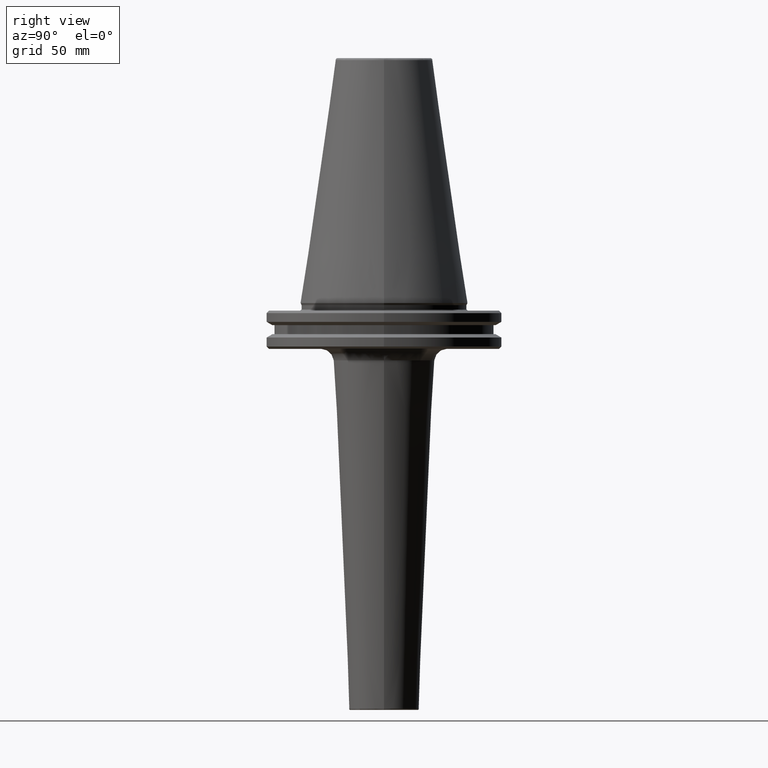
[diagram: clean part render]
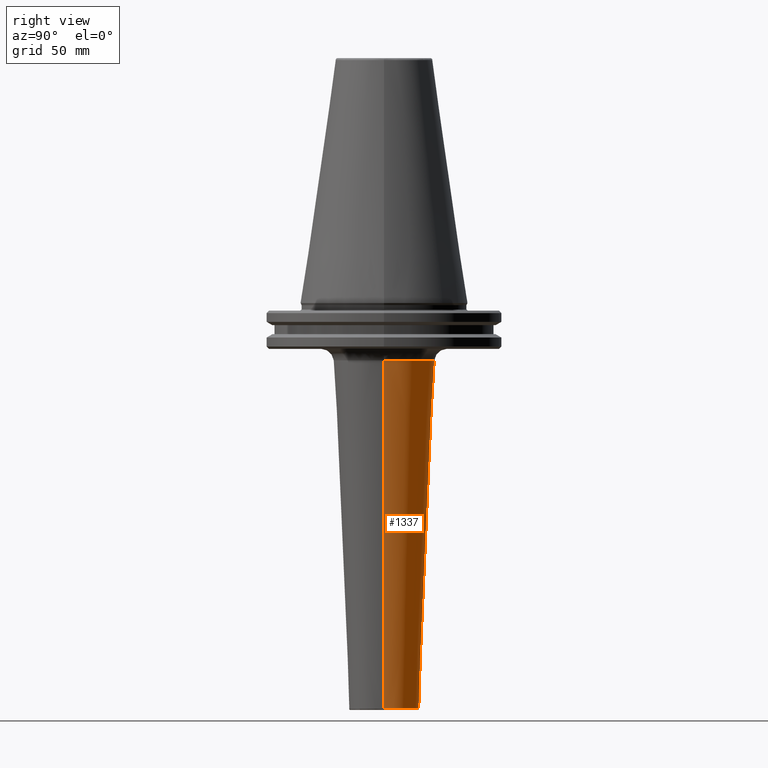
[diagram: same view with one face highlighted and labeled with its STEP entity id]
A machine part, right view. The second image highlights one B-rep face of the part: STEP entity #1337.
In plain terms, the highlighted conical surface has half-angle 2.577 deg.
Its self-contained STEP definition (entity closure, byte-faithful):
#39 = CARTESIAN_POINT ( 'NONE',  ( 14.52148852360191900, 0.0000000000000000000, -168.6224772532907300 ) ) ;
#44 = EDGE_CURVE ( 'NONE', #608, #973, #1313, .T. ) ;
#45 = CARTESIAN_POINT ( 'NONE',  ( 0.0000000000000000000, 0.0000000000000000000, -23.87522746709260000 ) ) ;
#53 = DIRECTION ( 'NONE',  ( 0.0000000000000000000, 0.0000000000000000000, 1.000000000000000000 ) ) ;
#87 = DIRECTION ( 'NONE',  ( 1.000000000000000000, 0.0000000000000000000, 0.0000000000000000000 ) ) ;
#116 = CARTESIAN_POINT ( 'NONE',  ( 21.03511476398083200, 0.0000000000000000000, -23.87522746709260000 ) ) ;
#121 = DIRECTION ( 'NONE',  ( 0.04495450658148167400, 0.0000000000000000000, 0.9989890351440378100 ) ) ;
#126 = CARTESIAN_POINT ( 'NONE',  ( 21.03511476398083200, 0.0000000000000000000, -23.87522746709260000 ) ) ;
#175 = DIRECTION ( 'NONE',  ( -1.000000000000000000, 0.0000000000000000000, 0.0000000000000000000 ) ) ;
#190 = DIRECTION ( 'NONE',  ( 0.0000000000000000000, 0.0000000000000000000, -1.000000000000000000 ) ) ;
#206 = CARTESIAN_POINT ( 'NONE',  ( 0.0000000000000000000, 0.0000000000000000000, -23.87522746709260000 ) ) ;
#210 = DIRECTION ( 'NONE',  ( -0.04495450658148167400, 5.505339259226015600E-018, 0.9989890351440378100 ) ) ;
#234 = DIRECTION ( 'NONE',  ( 1.000000000000000000, 0.0000000000000000000, 0.0000000000000000000 ) ) ;
#240 = DIRECTION ( 'NONE',  ( 0.0000000000000000000, 0.0000000000000000000, 1.000000000000000000 ) ) ;
#245 = CARTESIAN_POINT ( 'NONE',  ( 0.0000000000000000000, 0.0000000000000000000, -168.6224772532907300 ) ) ;
#256 = CARTESIAN_POINT ( 'NONE',  ( -21.03511476398083200, 2.576058596540636000E-015, -23.87522746709260000 ) ) ;
#332 = AXIS2_PLACEMENT_3D ( 'NONE', #206, #190, #175 ) ;
#340 = AXIS2_PLACEMENT_3D ( 'NONE', #245, #240, #234 ) ;
#486 = AXIS2_PLACEMENT_3D ( 'NONE', #45, #53, #87 ) ;
#608 = VERTEX_POINT ( 'NONE', #710 ) ;
#710 = CARTESIAN_POINT ( 'NONE',  ( -14.52148852360192100, 2.177214020234523800E-015, -168.6224772532907300 ) ) ;
#712 = CONICAL_SURFACE ( 'NONE', #486, 21.03511476398083200, 0.04496966185232755700 ) ;
#779 = FACE_OUTER_BOUND ( 'NONE', #1019, .T. ) ;
#803 = VECTOR ( 'NONE', #121, 1000.000000000000000 ) ;
#810 = ORIENTED_EDGE ( 'NONE', *, *, #919, .T. ) ;
#841 = LINE ( 'NONE', #126, #803 ) ;
#910 = EDGE_CURVE ( 'NONE', #1338, #608, #1080, .T. ) ;
#919 = EDGE_CURVE ( 'NONE', #973, #1207, #1065, .T. ) ;
#973 = VERTEX_POINT ( 'NONE', #256 ) ;
#1019 = EDGE_LOOP ( 'NONE', ( #1377, #1453, #810, #1222 ) ) ;
#1065 = CIRCLE ( 'NONE', #332, 21.03511476398083200 ) ;
#1080 = CIRCLE ( 'NONE', #340, 14.52148852360191900 ) ;
#1118 = VECTOR ( 'NONE', #210, 1000.000000000000000 ) ;
#1176 = EDGE_CURVE ( 'NONE', #1338, #1207, #841, .T. ) ;
#1207 = VERTEX_POINT ( 'NONE', #116 ) ;
#1210 = CARTESIAN_POINT ( 'NONE',  ( -21.03511476398083200, 2.576058596540636000E-015, -23.87522746709260000 ) ) ;
#1222 = ORIENTED_EDGE ( 'NONE', *, *, #1176, .F. ) ;
#1313 = LINE ( 'NONE', #1210, #1118 ) ;
#1337 = ADVANCED_FACE ( 'NONE', ( #779 ), #712, .T. ) ;
#1338 = VERTEX_POINT ( 'NONE', #39 ) ;
#1377 = ORIENTED_EDGE ( 'NONE', *, *, #910, .T. ) ;
#1453 = ORIENTED_EDGE ( 'NONE', *, *, #44, .T. ) ;